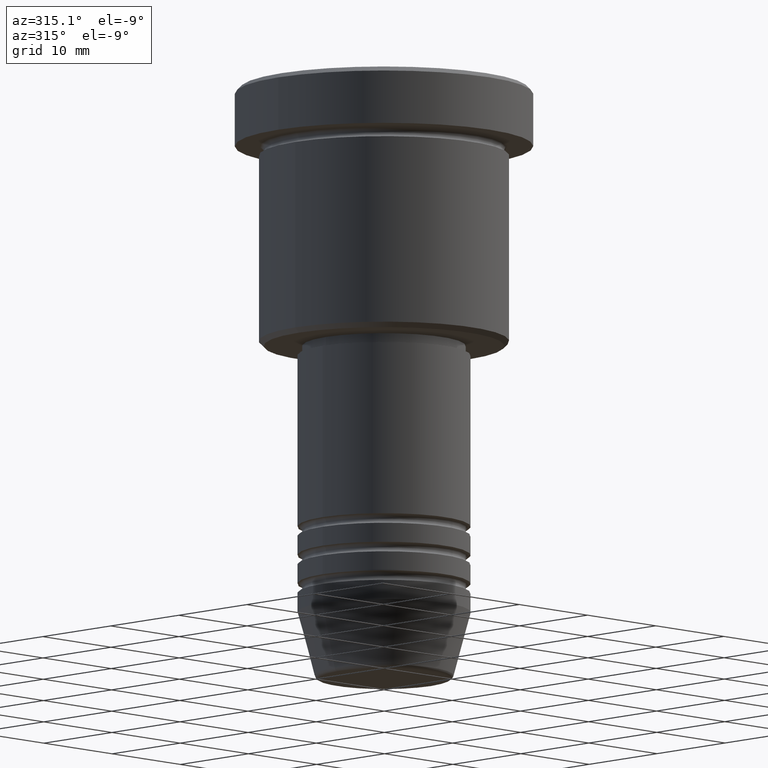
[diagram: clean part render]
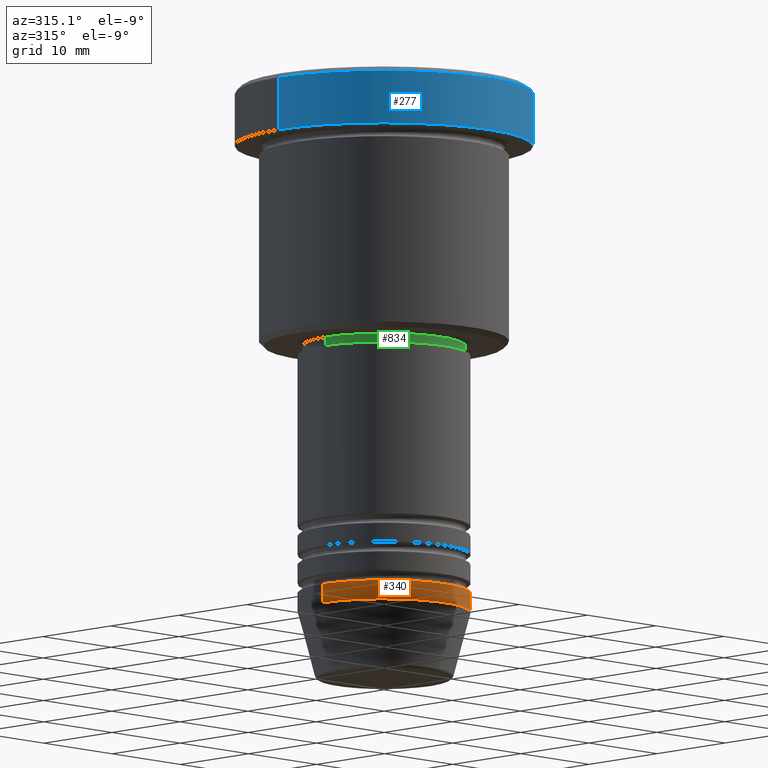
[diagram: same view with three faces highlighted in distinct colors, each labeled with its STEP entity id]
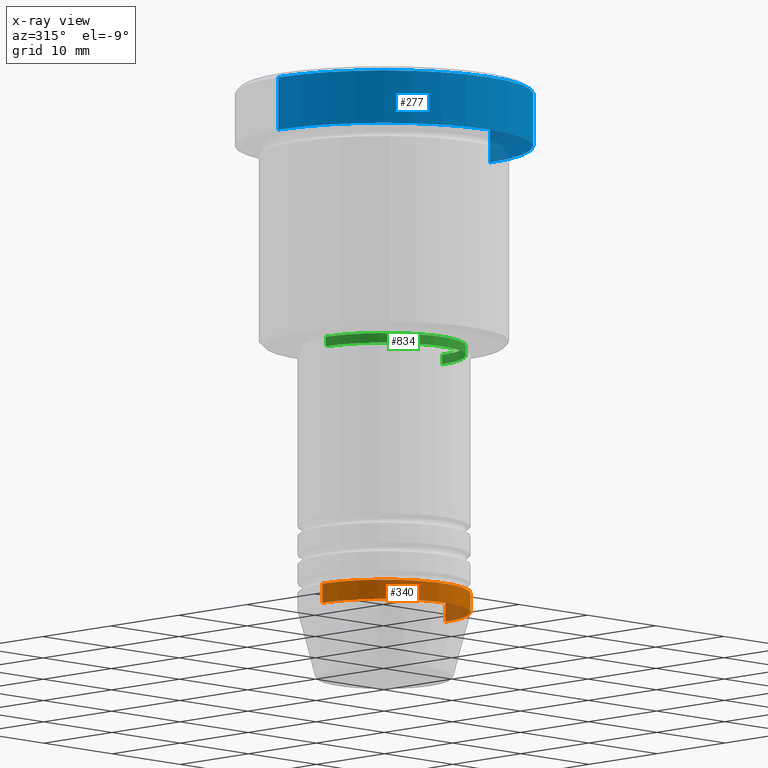
[diagram: x-ray of the same camera — body ghosted, the three highlighted faces saturated]
A machine part, auxiliary view with three faces highlighted in distinct colors.
The next image is the same camera in x-ray (body ghosted, the three faces saturated) — at least one of them is partly hidden behind the body in this view.
Their STEP definitions:

[orange] entity #340 — the highlighted cylindrical surface (partial cylindrical patch) has radius 9 mm, axis along (-0, -0, 1).
#5 = DIRECTION ( 'NONE',  ( -0.000000000000000000, -0.000000000000000000, 1.000000000000000000 ) ) ;
#25 = CARTESIAN_POINT ( 'NONE',  ( -9.000000000000000000, 1.102182119232617714E-15, -53.00000000000000000 ) ) ;
#53 = VERTEX_POINT ( 'NONE', #465 ) ;
#82 = LINE ( 'NONE', #463, #748 ) ;
#85 = ORIENTED_EDGE ( 'NONE', *, *, #429, .F. ) ;
#130 = AXIS2_PLACEMENT_3D ( 'NONE', #1030, #296, #1104 ) ;
#146 = DIRECTION ( 'NONE',  ( -0.000000000000000000, -0.000000000000000000, 1.000000000000000000 ) ) ;
#169 = CARTESIAN_POINT ( 'NONE',  ( 0.000000000000000000, 0.000000000000000000, -55.00000000000000000 ) ) ;
#243 = CIRCLE ( 'NONE', #1138, 9.000000000000000000 ) ;
#252 = DIRECTION ( 'NONE',  ( -0.000000000000000000, -0.000000000000000000, 1.000000000000000000 ) ) ;
#254 = CARTESIAN_POINT ( 'NONE',  ( 0.000000000000000000, 0.000000000000000000, 0.000000000000000000 ) ) ;
#263 = ORIENTED_EDGE ( 'NONE', *, *, #751, .T. ) ;
#287 = VERTEX_POINT ( 'NONE', #1119 ) ;
#296 = DIRECTION ( 'NONE',  ( -0.000000000000000000, -0.000000000000000000, 1.000000000000000000 ) ) ;
#329 = DIRECTION ( 'NONE',  ( 1.000000000000000000, 0.000000000000000000, 0.000000000000000000 ) ) ;
#340 = ADVANCED_FACE ( 'NONE', ( #860 ), #506, .T. ) ;
#346 = VECTOR ( 'NONE', #146, 1000.000000000000000 ) ;
#418 = DIRECTION ( 'NONE',  ( -0.000000000000000000, -0.000000000000000000, 1.000000000000000000 ) ) ;
#429 = EDGE_CURVE ( 'NONE', #53, #909, #82, .T. ) ;
#463 = CARTESIAN_POINT ( 'NONE',  ( -9.000000000000000000, 1.102182119232617714E-15, 0.000000000000000000 ) ) ;
#465 = CARTESIAN_POINT ( 'NONE',  ( -9.000000000000000000, 1.102182119232617714E-15, -55.00000000000000000 ) ) ;
#506 = CYLINDRICAL_SURFACE ( 'NONE', #762, 9.000000000000000000 ) ;
#680 = CIRCLE ( 'NONE', #130, 9.000000000000000000 ) ;
#748 = VECTOR ( 'NONE', #5, 1000.000000000000000 ) ;
#751 = EDGE_CURVE ( 'NONE', #53, #1130, #243, .T. ) ;
#762 = AXIS2_PLACEMENT_3D ( 'NONE', #254, #418, #329 ) ;
#773 = CARTESIAN_POINT ( 'NONE',  ( 9.000000000000000000, 0.000000000000000000, 0.000000000000000000 ) ) ;
#779 = DIRECTION ( 'NONE',  ( 1.000000000000000000, 0.000000000000000000, 0.000000000000000000 ) ) ;
#859 = ORIENTED_EDGE ( 'NONE', *, *, #963, .F. ) ;
#860 = FACE_OUTER_BOUND ( 'NONE', #906, .T. ) ;
#906 = EDGE_LOOP ( 'NONE', ( #85, #263, #944, #859 ) ) ;
#909 = VERTEX_POINT ( 'NONE', #25 ) ;
#944 = ORIENTED_EDGE ( 'NONE', *, *, #1064, .T. ) ;
#963 = EDGE_CURVE ( 'NONE', #909, #287, #680, .T. ) ;
#968 = LINE ( 'NONE', #773, #346 ) ;
#1030 = CARTESIAN_POINT ( 'NONE',  ( 0.000000000000000000, 0.000000000000000000, -53.00000000000000000 ) ) ;
#1051 = CARTESIAN_POINT ( 'NONE',  ( 9.000000000000000000, 0.000000000000000000, -55.00000000000000000 ) ) ;
#1064 = EDGE_CURVE ( 'NONE', #1130, #287, #968, .T. ) ;
#1104 = DIRECTION ( 'NONE',  ( 1.000000000000000000, 0.000000000000000000, 0.000000000000000000 ) ) ;
#1119 = CARTESIAN_POINT ( 'NONE',  ( 9.000000000000000000, 0.000000000000000000, -53.00000000000000000 ) ) ;
#1130 = VERTEX_POINT ( 'NONE', #1051 ) ;
#1138 = AXIS2_PLACEMENT_3D ( 'NONE', #169, #252, #779 ) ;

[blue] entity #277 — the highlighted cylindrical surface (partial cylindrical patch) has radius 15.5 mm, axis along (-0, -0, 1).
#2 = VERTEX_POINT ( 'NONE', #325 ) ;
#14 = DIRECTION ( 'NONE',  ( -0.000000000000000000, -0.000000000000000000, 1.000000000000000000 ) ) ;
#18 = VECTOR ( 'NONE', #211, 1000.000000000000000 ) ;
#52 = DIRECTION ( 'NONE',  ( 1.000000000000000000, 0.000000000000000000, 0.000000000000000000 ) ) ;
#211 = DIRECTION ( 'NONE',  ( -0.000000000000000000, -0.000000000000000000, 1.000000000000000000 ) ) ;
#214 = FACE_OUTER_BOUND ( 'NONE', #351, .T. ) ;
#223 = CARTESIAN_POINT ( 'NONE',  ( 0.000000000000000000, 0.000000000000000000, 0.000000000000000000 ) ) ;
#236 = DIRECTION ( 'NONE',  ( -0.000000000000000000, -0.000000000000000000, 1.000000000000000000 ) ) ;
#255 = ORIENTED_EDGE ( 'NONE', *, *, #1041, .F. ) ;
#277 = ADVANCED_FACE ( 'NONE', ( #214 ), #747, .T. ) ;
#294 = CARTESIAN_POINT ( 'NONE',  ( 15.50000000000000000, 0.000000000000000000, 0.000000000000000000 ) ) ;
#305 = VECTOR ( 'NONE', #1173, 1000.000000000000000 ) ;
#325 = CARTESIAN_POINT ( 'NONE',  ( -15.50000000000000000, 1.898202538678397557E-15, -0.5000000000000196509 ) ) ;
#331 = ORIENTED_EDGE ( 'NONE', *, *, #641, .T. ) ;
#345 = LINE ( 'NONE', #703, #305 ) ;
#351 = EDGE_LOOP ( 'NONE', ( #255, #331, #964, #708 ) ) ;
#427 = VERTEX_POINT ( 'NONE', #716 ) ;
#441 = VERTEX_POINT ( 'NONE', #454 ) ;
#454 = CARTESIAN_POINT ( 'NONE',  ( 15.50000000000000000, 0.000000000000000000, -0.5000000000000196509 ) ) ;
#503 = EDGE_CURVE ( 'NONE', #427, #441, #626, .T. ) ;
#512 = DIRECTION ( 'NONE',  ( 0.000000000000000000, 0.000000000000000000, -1.000000000000000000 ) ) ;
#595 = CARTESIAN_POINT ( 'NONE',  ( 0.000000000000000000, 0.000000000000000000, -5.999999999999995559 ) ) ;
#600 = CARTESIAN_POINT ( 'NONE',  ( -15.50000000000000000, 1.898202538678397557E-15, -5.999999999999995559 ) ) ;
#626 = LINE ( 'NONE', #294, #18 ) ;
#641 = EDGE_CURVE ( 'NONE', #648, #427, #1117, .T. ) ;
#648 = VERTEX_POINT ( 'NONE', #600 ) ;
#703 = CARTESIAN_POINT ( 'NONE',  ( -15.50000000000000000, 1.898202538678397557E-15, 0.000000000000000000 ) ) ;
#708 = ORIENTED_EDGE ( 'NONE', *, *, #1110, .T. ) ;
#716 = CARTESIAN_POINT ( 'NONE',  ( 15.50000000000000000, 0.000000000000000000, -5.999999999999995559 ) ) ;
#747 = CYLINDRICAL_SURFACE ( 'NONE', #1115, 15.50000000000000000 ) ;
#828 = CIRCLE ( 'NONE', #1089, 15.50000000000000000 ) ;
#838 = DIRECTION ( 'NONE',  ( 1.000000000000000000, 0.000000000000000000, 0.000000000000000000 ) ) ;
#855 = CARTESIAN_POINT ( 'NONE',  ( 0.000000000000000000, 0.000000000000000000, -0.5000000000000196509 ) ) ;
#964 = ORIENTED_EDGE ( 'NONE', *, *, #503, .T. ) ;
#1041 = EDGE_CURVE ( 'NONE', #648, #2, #345, .T. ) ;
#1089 = AXIS2_PLACEMENT_3D ( 'NONE', #855, #512, #52 ) ;
#1103 = AXIS2_PLACEMENT_3D ( 'NONE', #595, #236, #1122 ) ;
#1110 = EDGE_CURVE ( 'NONE', #441, #2, #828, .T. ) ;
#1115 = AXIS2_PLACEMENT_3D ( 'NONE', #223, #14, #838 ) ;
#1117 = CIRCLE ( 'NONE', #1103, 15.50000000000000000 ) ;
#1122 = DIRECTION ( 'NONE',  ( 1.000000000000000000, 0.000000000000000000, 0.000000000000000000 ) ) ;
#1173 = DIRECTION ( 'NONE',  ( -0.000000000000000000, -0.000000000000000000, 1.000000000000000000 ) ) ;

[green] entity #834 — the highlighted cylindrical surface (partial cylindrical patch) has radius 8.5 mm, axis along (-0, -0, 1).
#22 = DIRECTION ( 'NONE',  ( 1.000000000000000000, 0.000000000000000000, 0.000000000000000000 ) ) ;
#27 = DIRECTION ( 'NONE',  ( -0.000000000000000000, -0.000000000000000000, 1.000000000000000000 ) ) ;
#71 = FACE_OUTER_BOUND ( 'NONE', #439, .T. ) ;
#118 = DIRECTION ( 'NONE',  ( -0.000000000000000000, -0.000000000000000000, 1.000000000000000000 ) ) ;
#127 = AXIS2_PLACEMENT_3D ( 'NONE', #754, #27, #22 ) ;
#134 = ORIENTED_EDGE ( 'NONE', *, *, #861, .T. ) ;
#181 = CARTESIAN_POINT ( 'NONE',  ( 0.000000000000000000, 0.000000000000000000, 0.000000000000000000 ) ) ;
#213 = EDGE_CURVE ( 'NONE', #495, #810, #1086, .T. ) ;
#216 = CARTESIAN_POINT ( 'NONE',  ( 0.000000000000000000, 0.000000000000000000, -27.99999999999999645 ) ) ;
#275 = CARTESIAN_POINT ( 'NONE',  ( 8.499999999999998224, 0.000000000000000000, -26.99999999999999645 ) ) ;
#281 = DIRECTION ( 'NONE',  ( 1.000000000000000000, 0.000000000000000000, 0.000000000000000000 ) ) ;
#288 = CIRCLE ( 'NONE', #540, 8.499999999999998224 ) ;
#308 = ORIENTED_EDGE ( 'NONE', *, *, #974, .T. ) ;
#349 = DIRECTION ( 'NONE',  ( -0.000000000000000000, -0.000000000000000000, 1.000000000000000000 ) ) ;
#439 = EDGE_LOOP ( 'NONE', ( #975, #134, #308, #932 ) ) ;
#456 = EDGE_CURVE ( 'NONE', #982, #495, #808, .T. ) ;
#476 = DIRECTION ( 'NONE',  ( -0.000000000000000000, -0.000000000000000000, 1.000000000000000000 ) ) ;
#495 = VERTEX_POINT ( 'NONE', #1084 ) ;
#540 = AXIS2_PLACEMENT_3D ( 'NONE', #216, #476, #281 ) ;
#544 = DIRECTION ( 'NONE',  ( 1.000000000000000000, 0.000000000000000000, 0.000000000000000000 ) ) ;
#557 = LINE ( 'NONE', #1036, #608 ) ;
#572 = AXIS2_PLACEMENT_3D ( 'NONE', #181, #349, #544 ) ;
#608 = VECTOR ( 'NONE', #118, 1000.000000000000000 ) ;
#643 = VECTOR ( 'NONE', #1183, 1000.000000000000000 ) ;
#728 = CARTESIAN_POINT ( 'NONE',  ( -8.499999999999998224, 1.040949779275249943E-15, -27.99999999999999645 ) ) ;
#754 = CARTESIAN_POINT ( 'NONE',  ( 0.000000000000000000, 0.000000000000000000, -26.99999999999999645 ) ) ;
#808 = LINE ( 'NONE', #983, #643 ) ;
#810 = VERTEX_POINT ( 'NONE', #275 ) ;
#834 = ADVANCED_FACE ( 'NONE', ( #71 ), #1094, .T. ) ;
#861 = EDGE_CURVE ( 'NONE', #982, #882, #288, .T. ) ;
#882 = VERTEX_POINT ( 'NONE', #1009 ) ;
#932 = ORIENTED_EDGE ( 'NONE', *, *, #213, .F. ) ;
#974 = EDGE_CURVE ( 'NONE', #882, #810, #557, .T. ) ;
#975 = ORIENTED_EDGE ( 'NONE', *, *, #456, .F. ) ;
#982 = VERTEX_POINT ( 'NONE', #728 ) ;
#983 = CARTESIAN_POINT ( 'NONE',  ( -8.499999999999998224, 1.040949779275249943E-15, 0.000000000000000000 ) ) ;
#1009 = CARTESIAN_POINT ( 'NONE',  ( 8.499999999999998224, 0.000000000000000000, -27.99999999999999645 ) ) ;
#1036 = CARTESIAN_POINT ( 'NONE',  ( 8.499999999999998224, 0.000000000000000000, 0.000000000000000000 ) ) ;
#1084 = CARTESIAN_POINT ( 'NONE',  ( -8.499999999999998224, 1.040949779275249943E-15, -26.99999999999999645 ) ) ;
#1086 = CIRCLE ( 'NONE', #127, 8.499999999999998224 ) ;
#1094 = CYLINDRICAL_SURFACE ( 'NONE', #572, 8.499999999999998224 ) ;
#1183 = DIRECTION ( 'NONE',  ( -0.000000000000000000, -0.000000000000000000, 1.000000000000000000 ) ) ;